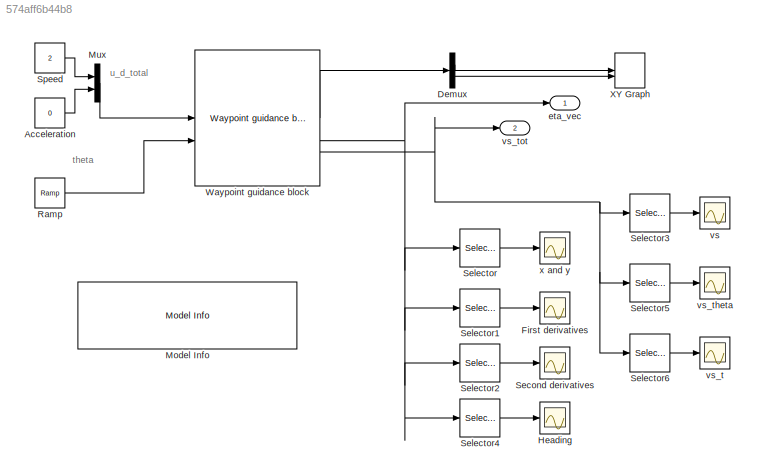
MODEL slx_574aff6b44b8
KIND model
CONFIG AbsTol = auto
CONFIG EnableMultiTasking = on
CONFIG FixedStep = auto
CONFIG MaxStep = 10^-2
CONFIG MinStep = auto
CONFIG RelTol = 1e-3
CONFIG SampleTimeConstraint = Unconstrained
CONFIG SolverName = ode45
CONFIG StartTime = 0.0
CONFIG StopTime = 50
BLOCK [Constant] Acceleration
  Value = 0
BLOCK [Demux] Demux
  DisplayOption = none
  Outputs = 2
BLOCK [Scope] First derivatives
  Floating = off
  NumInputPorts = 1
  ScopeSpecificationString = C++SS(StrPVP('Location','[262, 79, 836, 555]'),StrPVP('Open','off'),StrPVP('ZoomMode','xonly'),MxPVP('AxesTitles',54,'struct(''axes1'',''%<SignalLabel>'')'),StrPVP('TimeRange','14'),StrPVP('YMin','-2000'),StrPVP('YMax','2500'),StrPVP('DataFormat','StructureWithTime'),StrPVP('LimitDataPoints','on'),StrPVP('Decimation','1'),StrPVP('BlockParamSampleInput','off'))
BLOCK [Scope] Heading
  Floating = off
  NumInputPorts = 1
  ScopeSpecificationString = C++SS(StrPVP('Location','[428, 76, 1002, 552]'),StrPVP('Open','off'),StrPVP('ZoomMode','xonly'),MxPVP('AxesTitles',54,'struct(''axes1'',''%<SignalLabel>'')'),StrPVP('TimeRange','14'),StrPVP('YMin','-4'),StrPVP('YMax','4'),StrPVP('SaveName','ScopeData3'),StrPVP('DataFormat','StructureWithTime'),StrPVP('LimitDataPoints','on'),StrPVP('Decimation','1'),StrPVP('BlockParamSampleInput','off'))
BLOCK [Reference] Model Info  REF=simulink/Model-Wide
Utilities/Model Info
  SourceBlock = simulink/Model-Wide\nUtilities/Model Info
  SourceType = CMBlock
BLOCK [Mux] Mux
  DisplayOption = bar
  Inputs = 2
BLOCK [Reference] Ramp   REF=simulink/Sources/Ramp
  SourceBlock = simulink/Sources/Ramp
  SourceType = Ramp
BLOCK [Scope] Second derivatives
  Floating = off
  NumInputPorts = 1
  ScopeSpecificationString = C++SS(StrPVP('Location','[6, 88, 580, 565]'),StrPVP('Open','off'),StrPVP('ZoomMode','xonly'),MxPVP('AxesTitles',54,'struct(''axes1'',''%<SignalLabel>'')'),StrPVP('TimeRange','14'),StrPVP('YMin','-8000'),StrPVP('YMax','8000'),StrPVP('SaveName','ScopeData5'),StrPVP('DataFormat','StructureWithTime'),StrPVP('LimitDataPoints','on'),StrPVP('Decimation','1'),StrPVP('BlockParamSampleInput','off'))
BLOCK [Selector] Selector
  IndexOptions = Index vector (dialog)
  Indices = [1 2]
  InputPortWidth = 9
  OutputSizes = 1
BLOCK [Selector] Selector1
  IndexOptions = Index vector (dialog)
  Indices = [4 5]
  InputPortWidth = 9
  OutputSizes = 1
BLOCK [Selector] Selector2
  IndexOptions = Index vector (dialog)
  Indices = [7 8]
  InputPortWidth = 9
  OutputSizes = 1
BLOCK [Selector] Selector3
  IndexOptions = Index vector (dialog)
  Indices = 1
  InputPortWidth = 3
  OutputSizes = 1
BLOCK [Selector] Selector4
  IndexOptions = Index vector (dialog)
  Indices = 3
  InputPortWidth = 9
  OutputSizes = 1
BLOCK [Selector] Selector5
  IndexOptions = Index vector (dialog)
  Indices = 2
  InputPortWidth = 3
  OutputSizes = 1
BLOCK [Selector] Selector6
  IndexOptions = Index vector (dialog)
  Indices = 3
  InputPortWidth = 3
  OutputSizes = 1
BLOCK [Constant] Speed
  Value = 2
BLOCK [Reference] Waypoint guidance block   REF=mssSimulink/Guidance/Waypoint guidance block
  SourceBlock = mssSimulink/Guidance/Waypoint guidance block
  SourceType = Guidance
BLOCK [Record] XY Graph
  CompatibilityTag = XY
  FileSettingsInternal = {"entries":[{"content":{"excelSettings":{"content":{},"type":"Streamout.ExcelSettings"}},"type":"Streamout.FileSettingStorage","uuid":""}],"packageUris":["http:\/\/schema.mathworks.com\/mf0\/streamout_blocks\/R2020a"],"version":"1.0"}
  Layout = [1 1]
  SignalsInternal = {"entries":[{"content":{"signals":[{"content":{"blockPath":[],"dimensions":[1],"domain":"","lineColor":"#a2142f","plots":[ 1 ],"port":1,"signalID":1,"signalName":"Demux:1"},"type":"RecordBlkView.Signal","uuid":""},{"content":{"blockPath":[],"dimensions":[1],"domain":"","lineColor":"#139fff","plots":[ 1 ],"port":2,"signalID":2,"signalName":"Demux:2"},"type":"RecordBlkView.Signal","uuid":""}]},"type...<+138ch>
  VisualizationBindings = {"xyplotplugin":{"info":[{"series":[{"bindingParametersList":[{"parameter":"X-Axis","signalID":1,"signalName":"Demux:1"},{"parameter":"Y-Axis","signalID":2,"signalName":"Demux:2"}],"seriesID":0}],"subplotID":1}]}}
  st = -1
BLOCK [Outport] eta_vec
BLOCK [Scope] vs
  Floating = off
  NumInputPorts = 1
  ScopeSpecificationString = C++SS(StrPVP('Location','[1204, 78, 1778, 555]'),StrPVP('Open','off'),StrPVP('ZoomMode','yonly'),MxPVP('AxesTitles',54,'struct(''axes1'',''%<SignalLabel>'')'),StrPVP('TimeRange','4.5'),StrPVP('YMin','-0.00788177'),StrPVP('YMax','0.0507389'),StrPVP('SaveName','ScopeData1'),StrPVP('DataFormat','StructureWithTime'),StrPVP('LimitDataPoints','on'),StrPVP('Decimation','1'),StrPVP('BlockParamSampleInput'...<+8ch>
BLOCK [Scope] vs_t
  Floating = off
  NumInputPorts = 1
  ScopeSpecificationString = C++SS(StrPVP('Location','[303, 163, 877, 640]'),StrPVP('Open','off'),StrPVP('ZoomMode','yonly'),MxPVP('AxesTitles',54,'struct(''axes1'',''%<SignalLabel>'')'),StrPVP('TimeRange','10'),StrPVP('SaveName','ScopeData6'),StrPVP('DataFormat','StructureWithTime'),StrPVP('LimitDataPoints','on'),StrPVP('Decimation','1'),StrPVP('BlockParamSampleInput','off'))
BLOCK [Scope] vs_theta
  Floating = off
  NumInputPorts = 1
  ScopeSpecificationString = C++SS(StrPVP('Location','[1266, 600, 1840, 1077]'),StrPVP('Open','off'),StrPVP('ZoomMode','yonly'),MxPVP('AxesTitles',54,'struct(''axes1'',''%<SignalLabel>'')'),StrPVP('TimeRange','14'),StrPVP('YMin','-50000'),StrPVP('YMax','450000'),StrPVP('SaveName','ScopeData4'),StrPVP('DataFormat','StructureWithTime'),StrPVP('LimitDataPoints','on'),StrPVP('Decimation','1'),StrPVP('BlockParamSampleInput','off')...<+1ch>
BLOCK [Outport] vs_tot
  Port = 2
BLOCK [Scope] x and y
  Floating = off
  NumInputPorts = 1
  ScopeSpecificationString = C++SS(StrPVP('Location','[123, 116, 697, 592]'),StrPVP('Open','off'),StrPVP('ZoomMode','xonly'),MxPVP('AxesTitles',54,'struct(''axes1'',''%<SignalLabel>'')'),StrPVP('TimeRange','14'),StrPVP('YMin','-1000'),StrPVP('YMax','2500'),StrPVP('SaveName','ScopeData2'),StrPVP('DataFormat','StructureWithTime'),StrPVP('LimitDataPoints','on'),StrPVP('Decimation','1'),StrPVP('BlockParamSampleInput','off'))
ANNOTATION (root): theta
ANNOTATION (root): u_d_total
LINE Acceleration:1 -> Mux:2
LINE Demux:1 -> XY Graph:1
LINE Demux:2 -> XY Graph:2
LINE Mux:1 -> Waypoint guidance block :1
LINE Ramp :1 -> Waypoint guidance block :2
LINE Selector1:1 -> First derivatives:1
LINE Selector2:1 -> Second derivatives:1
LINE Selector3:1 -> vs:1
LINE Selector4:1 -> Heading:1
LINE Selector5:1 -> vs_theta:1
LINE Selector6:1 -> vs_t:1
LINE Selector:1 -> x and y:1
LINE Speed:1 -> Mux:1
LINE Waypoint guidance block :1 -> Demux:1
NET Waypoint guidance block :2 -> Selector1:1, Selector2:1, Selector4:1, Selector:1, eta_vec:1
NET Waypoint guidance block :3 -> Selector3:1, Selector5:1, Selector6:1, vs_tot:1
note: NET lines group one-source signal fan-out (src -> all destinations, sorted); 1:1 wires keep LINE
